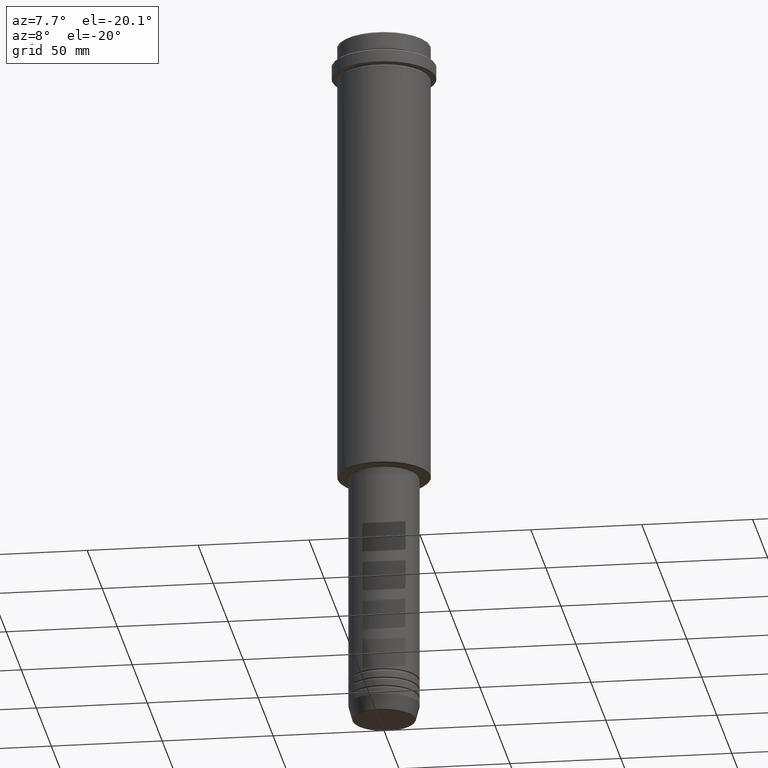
[diagram: clean part render]
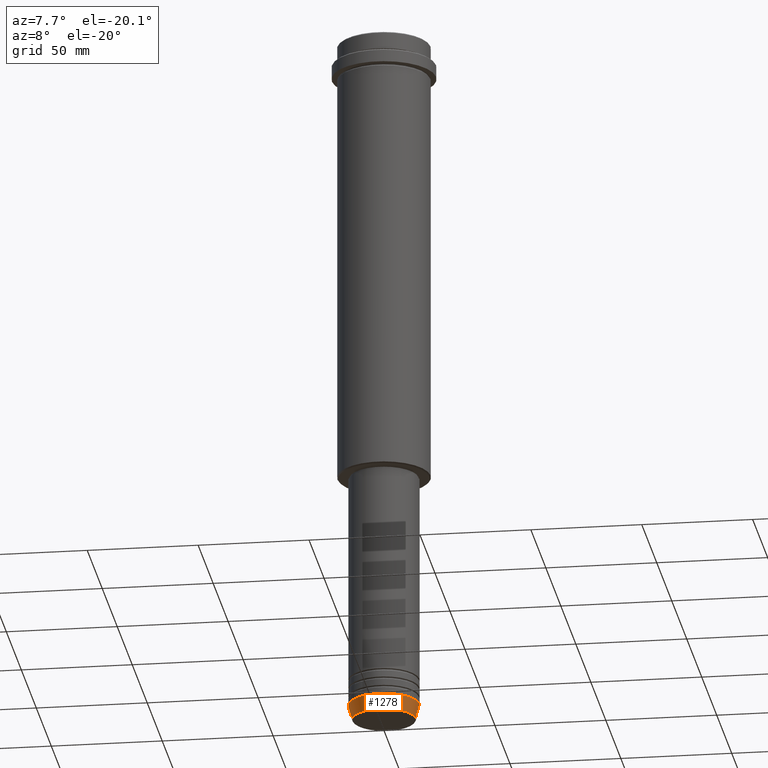
[diagram: same view with one face highlighted and labeled with its STEP entity id]
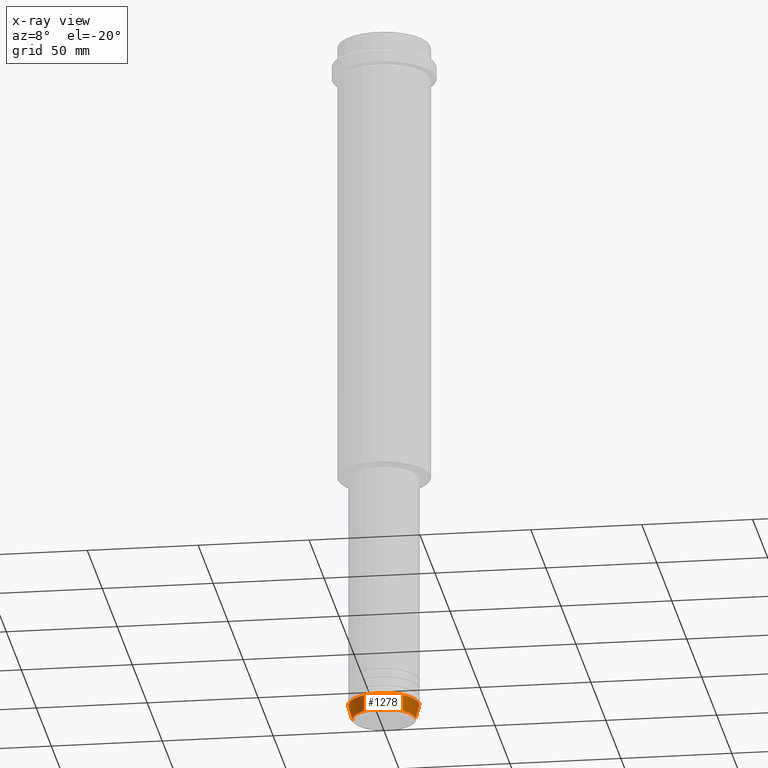
[diagram: x-ray of the same camera — body ghosted, the highlighted face saturated]
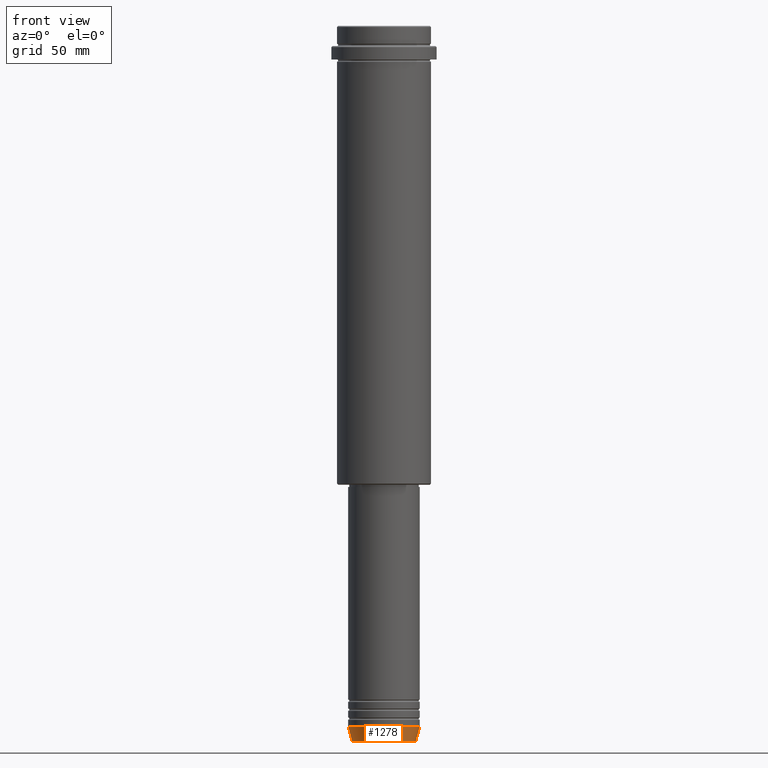
[diagram: same view with one face highlighted and labeled with its STEP entity id]
A machine part, auxiliary view. The second image highlights one B-rep face of the part: STEP entity #1278.
The next image is the same camera in x-ray: the body ghosted, the highlighted face saturated — about 0% of this face is hidden behind the body in this view.
A second angle (front view) of the same face is appended — the face is thin or edge-on in the first view.
In plain terms, the highlighted conical surface has half-angle 15 deg.
Its self-contained STEP definition (entity closure, byte-faithful):
#18 = EDGE_LOOP ( 'NONE', ( #460, #1303, #230, #1388 ) ) ;
#133 = DIRECTION ( 'NONE',  ( 1.000000000000000000, 0.000000000000000000, 0.000000000000000000 ) ) ;
#225 = EDGE_CURVE ( 'NONE', #792, #1272, #515, .T. ) ;
#230 = ORIENTED_EDGE ( 'NONE', *, *, #225, .T. ) ;
#363 = CARTESIAN_POINT ( 'NONE',  ( -14.22365507213718772, 1.850665122131323337E-15, -319.6294095225512706 ) ) ;
#372 = LINE ( 'NONE', #1287, #890 ) ;
#426 = EDGE_CURVE ( 'NONE', #952, #1085, #372, .T. ) ;
#460 = ORIENTED_EDGE ( 'NONE', *, *, #426, .F. ) ;
#515 = LINE ( 'NONE', #951, #1280 ) ;
#526 = CARTESIAN_POINT ( 'NONE',  ( 0.000000000000000000, 0.000000000000000000, -313.0000000000000000 ) ) ;
#635 = DIRECTION ( 'NONE',  ( -0.000000000000000000, -0.000000000000000000, 1.000000000000000000 ) ) ;
#638 = EDGE_CURVE ( 'NONE', #952, #792, #1032, .T. ) ;
#648 = EDGE_CURVE ( 'NONE', #1085, #1272, #984, .T. ) ;
#699 = DIRECTION ( 'NONE',  ( -0.000000000000000000, -0.000000000000000000, 1.000000000000000000 ) ) ;
#735 = DIRECTION ( 'NONE',  ( -0.2588190451025213501, 3.169619151431772337E-17, 0.9659258262890680902 ) ) ;
#740 = CARTESIAN_POINT ( 'NONE',  ( 16.00000000000000000, 0.000000000000000000, -313.0000000000000000 ) ) ;
#746 = FACE_OUTER_BOUND ( 'NONE', #18, .T. ) ;
#782 = AXIS2_PLACEMENT_3D ( 'NONE', #899, #906, #1239 ) ;
#785 = CONICAL_SURFACE ( 'NONE', #894, 16.00000000000000000, 0.2617993877991500740 ) ;
#792 = VERTEX_POINT ( 'NONE', #1152 ) ;
#890 = VECTOR ( 'NONE', #735, 1000.000000000000000 ) ;
#894 = AXIS2_PLACEMENT_3D ( 'NONE', #526, #635, #1200 ) ;
#899 = CARTESIAN_POINT ( 'NONE',  ( 0.000000000000000000, 0.000000000000000000, -313.0000000000000000 ) ) ;
#906 = DIRECTION ( 'NONE',  ( -0.000000000000000000, -0.000000000000000000, 1.000000000000000000 ) ) ;
#951 = CARTESIAN_POINT ( 'NONE',  ( 16.00000000000000000, 0.000000000000000000, -313.0000000000000000 ) ) ;
#952 = VERTEX_POINT ( 'NONE', #363 ) ;
#968 = DIRECTION ( 'NONE',  ( 0.2588190451025213501, 0.000000000000000000, 0.9659258262890680902 ) ) ;
#984 = CIRCLE ( 'NONE', #782, 16.00000000000000000 ) ;
#1032 = CIRCLE ( 'NONE', #1402, 14.22365507213718772 ) ;
#1085 = VERTEX_POINT ( 'NONE', #1155 ) ;
#1131 = CARTESIAN_POINT ( 'NONE',  ( 0.000000000000000000, 0.000000000000000000, -319.6294095225512706 ) ) ;
#1152 = CARTESIAN_POINT ( 'NONE',  ( 14.22365507213718772, 0.000000000000000000, -319.6294095225512706 ) ) ;
#1155 = CARTESIAN_POINT ( 'NONE',  ( -16.00000000000000000, 1.959434878635765131E-15, -313.0000000000000000 ) ) ;
#1200 = DIRECTION ( 'NONE',  ( 1.000000000000000000, 0.000000000000000000, 0.000000000000000000 ) ) ;
#1239 = DIRECTION ( 'NONE',  ( 1.000000000000000000, 0.000000000000000000, 0.000000000000000000 ) ) ;
#1272 = VERTEX_POINT ( 'NONE', #740 ) ;
#1278 = ADVANCED_FACE ( 'NONE', ( #746 ), #785, .T. ) ;
#1280 = VECTOR ( 'NONE', #968, 1000.000000000000000 ) ;
#1287 = CARTESIAN_POINT ( 'NONE',  ( -16.00000000000000000, 1.959434878635765131E-15, -313.0000000000000000 ) ) ;
#1303 = ORIENTED_EDGE ( 'NONE', *, *, #638, .T. ) ;
#1388 = ORIENTED_EDGE ( 'NONE', *, *, #648, .F. ) ;
#1402 = AXIS2_PLACEMENT_3D ( 'NONE', #1131, #699, #133 ) ;